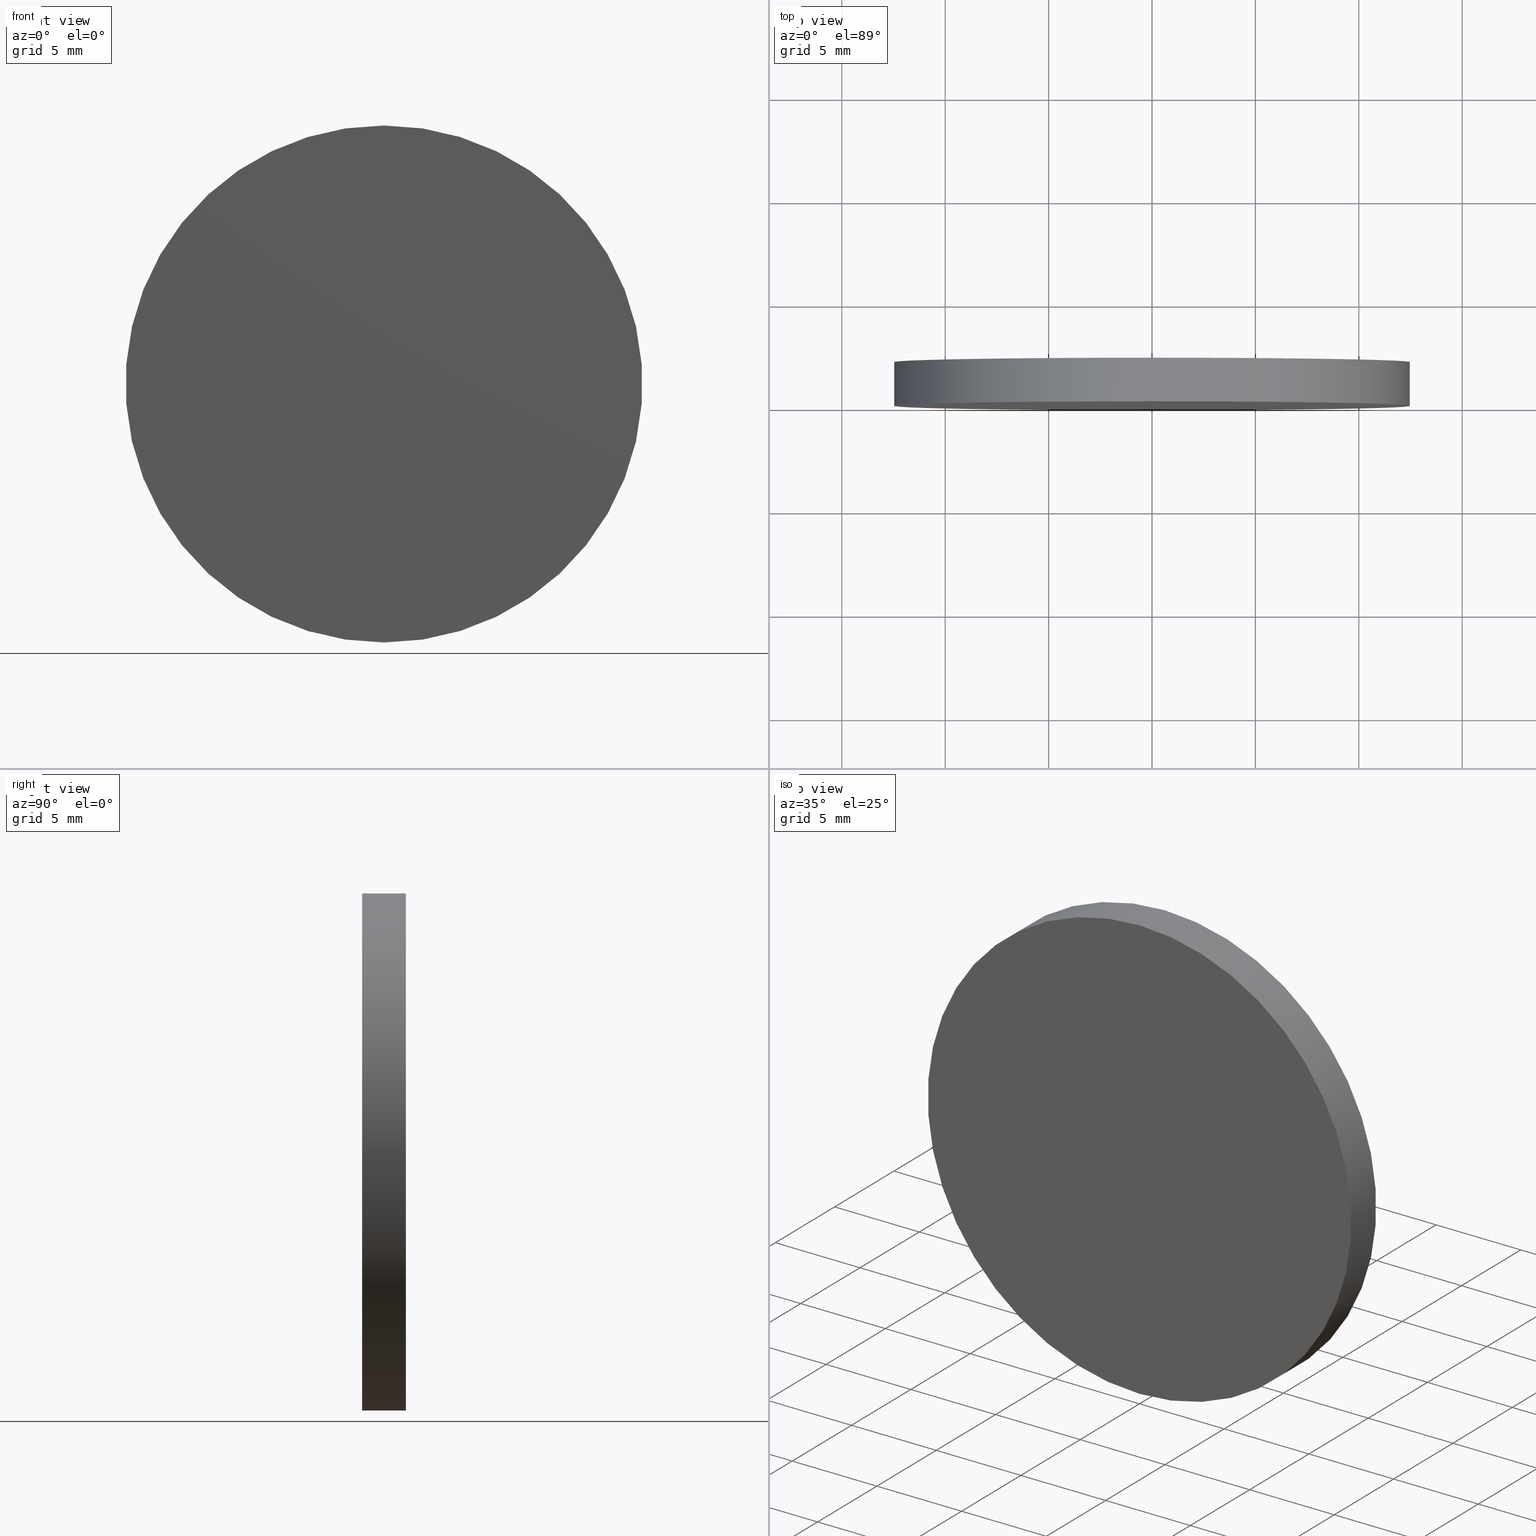
[diagram: canonical four-view strip — front | top / right | iso, engineering-drawing reading convention]
A machine part, canonical four-view strip (front | top / right | iso — engineering-drawing reading convention). The complete STEP part file that produces these views, byte-faithful:
ISO-10303-21;
HEADER;
FILE_DESCRIPTION (( 'STEP AP214' ),
    '1' );
FILE_NAME ('248586.STEP',
    '2019-08-06T03:23:05',
    ( 'user' ),
    ( '΢���й�' ),
    'SwSTEP 2.0',
    'SolidWorks 2016',
    '' );
FILE_SCHEMA (( 'AUTOMOTIVE_DESIGN' ));
ENDSEC;

DATA;
#1 = VERTEX_POINT ( 'NONE', #68 ) ;
#2 = CARTESIAN_POINT ( 'NONE',  ( 0.0000000000000000000, 0.0000000000000000000, 0.0000000000000000000 ) ) ;
#3 = SURFACE_SIDE_STYLE ('',( #88 ) ) ;
#4 = DIRECTION ( 'NONE',  ( 0.0000000000000000000, 1.000000000000000000, 0.0000000000000000000 ) ) ;
#5 = ORIENTED_EDGE ( 'NONE', *, *, #85, .F. ) ;
#6 = AXIS2_PLACEMENT_3D ( 'NONE', #2, #91, #129 ) ;
#7 = CARTESIAN_POINT ( 'NONE',  ( 1.530808498934191500E-015, 0.0000000000000000000, 12.50000000000000000 ) ) ;
#8 = SHAPE_DEFINITION_REPRESENTATION ( #58, #31 ) ;
#9 = PRESENTATION_LAYER_ASSIGNMENT (  '', '', ( #140 ) ) ;
#10 = COLOUR_RGB ( '',1.000000000000000000, 1.000000000000000000, 1.000000000000000000 ) ;
#11 = STYLED_ITEM ( 'NONE', ( #56 ), #135 ) ;
#12 = DIRECTION ( 'NONE',  ( -0.0000000000000000000, -1.000000000000000000, -0.0000000000000000000 ) ) ;
#13 =( NAMED_UNIT ( * ) PLANE_ANGLE_UNIT ( ) SI_UNIT ( $, .RADIAN. ) );
#14 = CARTESIAN_POINT ( 'NONE',  ( 0.0000000000000000000, 2.109999999999999900, 0.0000000000000000000 ) ) ;
#15 = CYLINDRICAL_SURFACE ( 'NONE', #116, 12.50000000000000000 ) ;
#16 = ADVANCED_FACE ( 'NONE', ( #66 ), #105, .T. ) ;
#17 = DIRECTION ( 'NONE',  ( 0.0000000000000000000, 0.0000000000000000000, -1.000000000000000000 ) ) ;
#18 = UNCERTAINTY_MEASURE_WITH_UNIT (LENGTH_MEASURE( 1.000000000000000100E-005 ), #84, 'distance_accuracy_value', 'NONE');
#19 = CARTESIAN_POINT ( 'NONE',  ( 0.0000000000000000000, 2.109999999999999900, -12.50000000000000000 ) ) ;
#20 = MECHANICAL_DESIGN_GEOMETRIC_PRESENTATION_REPRESENTATION (  '', ( #11 ), #74 ) ;
#21 = CIRCLE ( 'NONE', #77, 12.50000000000000000 ) ;
#22 = PRODUCT_DEFINITION ( 'δ֪', '', #72, #121 ) ;
#23 = ORIENTED_EDGE ( 'NONE', *, *, #120, .F. ) ;
#24 =( LENGTH_UNIT ( ) NAMED_UNIT ( * ) SI_UNIT ( .MILLI., .METRE. ) );
#25 = DIRECTION ( 'NONE',  ( 1.000000000000000000, 0.0000000000000000000, 0.0000000000000000000 ) ) ;
#26 =( GEOMETRIC_REPRESENTATION_CONTEXT ( 3 ) GLOBAL_UNCERTAINTY_ASSIGNED_CONTEXT ( ( #18 ) ) GLOBAL_UNIT_ASSIGNED_CONTEXT ( ( #84, #53, #93 ) ) REPRESENTATION_CONTEXT ( 'NONE', 'WORKASPACE' ) );
#27 = PLANE ( 'NONE',  #6 ) ;
#28 = PRODUCT ( '248586', '248586', '', ( #36 ) ) ;
#29 = ORIENTED_EDGE ( 'NONE', *, *, #136, .T. ) ;
#30 = CARTESIAN_POINT ( 'NONE',  ( 0.0000000000000000000, 2.109999999999999900, -12.50000000000000000 ) ) ;
#31 = ADVANCED_BREP_SHAPE_REPRESENTATION ( '248586', ( #135, #96 ), #47 ) ;
#32 = DIRECTION ( 'NONE',  ( 0.0000000000000000000, -0.0000000000000000000, 1.000000000000000000 ) ) ;
#33 = VERTEX_POINT ( 'NONE', #19 ) ;
#34 = PRODUCT_RELATED_PRODUCT_CATEGORY ( 'part', '', ( #28 ) ) ;
#35 = COLOUR_RGB ( '',1.000000000000000000, 1.000000000000000000, 1.000000000000000000 ) ;
#36 = PRODUCT_CONTEXT ( 'NONE', #63, 'mechanical' ) ;
#37 = CARTESIAN_POINT ( 'NONE',  ( 1.530808498934191500E-015, 2.109999999999999900, 12.50000000000000000 ) ) ;
#38 = EDGE_CURVE ( 'NONE', #108, #112, #46, .T. ) ;
#39 = CLOSED_SHELL ( 'NONE', ( #83, #70, #16, #127 ) ) ;
#40 = DIRECTION ( 'NONE',  ( 0.0000000000000000000, 0.0000000000000000000, -1.000000000000000000 ) ) ;
#41 = CARTESIAN_POINT ( 'NONE',  ( 0.0000000000000000000, 0.0000000000000000000, 0.0000000000000000000 ) ) ;
#42 = LINE ( 'NONE', #30, #99 ) ;
#43 = PRESENTATION_LAYER_ASSIGNMENT (  '', '', ( #11 ) ) ;
#44 = CIRCLE ( 'NONE', #126, 12.50000000000000000 ) ;
#45 = DIRECTION ( 'NONE',  ( 0.0000000000000000000, 1.000000000000000000, 0.0000000000000000000 ) ) ;
#46 = LINE ( 'NONE', #37, #101 ) ;
#47 =( GEOMETRIC_REPRESENTATION_CONTEXT ( 3 ) GLOBAL_UNCERTAINTY_ASSIGNED_CONTEXT ( ( #134 ) ) GLOBAL_UNIT_ASSIGNED_CONTEXT ( ( #59, #61, #103 ) ) REPRESENTATION_CONTEXT ( 'NONE', 'WORKASPACE' ) );
#48 = DIRECTION ( 'NONE',  ( -0.0000000000000000000, -1.000000000000000000, -0.0000000000000000000 ) ) ;
#49 = DIRECTION ( 'NONE',  ( -0.0000000000000000000, -1.000000000000000000, -0.0000000000000000000 ) ) ;
#50 = DIRECTION ( 'NONE',  ( 0.0000000000000000000, 0.0000000000000000000, 1.000000000000000000 ) ) ;
#51 = AXIS2_PLACEMENT_3D ( 'NONE', #128, #78, #81 ) ;
#52 = FILL_AREA_STYLE ('',( #102 ) ) ;
#53 =( NAMED_UNIT ( * ) PLANE_ANGLE_UNIT ( ) SI_UNIT ( $, .RADIAN. ) );
#54 = ORIENTED_EDGE ( 'NONE', *, *, #92, .F. ) ;
#55 = PRESENTATION_STYLE_ASSIGNMENT (( #94 ) ) ;
#56 = PRESENTATION_STYLE_ASSIGNMENT (( #86 ) ) ;
#57 = ORIENTED_EDGE ( 'NONE', *, *, #38, .F. ) ;
#58 = PRODUCT_DEFINITION_SHAPE ( 'NONE', 'NONE',  #22 ) ;
#59 =( LENGTH_UNIT ( ) NAMED_UNIT ( * ) SI_UNIT ( .MILLI., .METRE. ) );
#60 = ORIENTED_EDGE ( 'NONE', *, *, #38, .T. ) ;
#61 =( NAMED_UNIT ( * ) PLANE_ANGLE_UNIT ( ) SI_UNIT ( $, .RADIAN. ) );
#62 = DIRECTION ( 'NONE',  ( 0.0000000000000000000, 0.0000000000000000000, 1.000000000000000000 ) ) ;
#63 = APPLICATION_CONTEXT ( 'automotive_design' ) ;
#64 = DIRECTION ( 'NONE',  ( 0.0000000000000000000, 1.000000000000000000, 0.0000000000000000000 ) ) ;
#65 = EDGE_LOOP ( 'NONE', ( #23, #60, #139, #80 ) ) ;
#66 = FACE_OUTER_BOUND ( 'NONE', #106, .T. ) ;
#67 = SURFACE_STYLE_FILL_AREA ( #104 ) ;
#68 = CARTESIAN_POINT ( 'NONE',  ( 0.0000000000000000000, 0.0000000000000000000, -12.50000000000000000 ) ) ;
#69 = DIRECTION ( 'NONE',  ( 0.0000000000000000000, 0.0000000000000000000, 1.000000000000000000 ) ) ;
#70 = ADVANCED_FACE ( 'NONE', ( #71 ), #15, .T. ) ;
#71 = FACE_OUTER_BOUND ( 'NONE', #137, .T. ) ;
#72 = PRODUCT_DEFINITION_FORMATION_WITH_SPECIFIED_SOURCE ( '�κ�', '', #28, .NOT_KNOWN. ) ;
#73 = FACE_OUTER_BOUND ( 'NONE', #87, .T. ) ;
#74 =( GEOMETRIC_REPRESENTATION_CONTEXT ( 3 ) GLOBAL_UNCERTAINTY_ASSIGNED_CONTEXT ( ( #119 ) ) GLOBAL_UNIT_ASSIGNED_CONTEXT ( ( #24, #13, #114 ) ) REPRESENTATION_CONTEXT ( 'NONE', 'WORKASPACE' ) );
#75 = CARTESIAN_POINT ( 'NONE',  ( 0.0000000000000000000, 2.109999999999999900, 0.0000000000000000000 ) ) ;
#76 = CIRCLE ( 'NONE', #107, 12.50000000000000000 ) ;
#77 = AXIS2_PLACEMENT_3D ( 'NONE', #113, #82, #62 ) ;
#78 = DIRECTION ( 'NONE',  ( 0.0000000000000000000, 1.000000000000000000, 0.0000000000000000000 ) ) ;
#79 = CARTESIAN_POINT ( 'NONE',  ( 0.0000000000000000000, 0.0000000000000000000, 0.0000000000000000000 ) ) ;
#80 = ORIENTED_EDGE ( 'NONE', *, *, #136, .F. ) ;
#81 = DIRECTION ( 'NONE',  ( 0.0000000000000000000, 0.0000000000000000000, 1.000000000000000000 ) ) ;
#82 = DIRECTION ( 'NONE',  ( 0.0000000000000000000, 1.000000000000000000, 0.0000000000000000000 ) ) ;
#83 = ADVANCED_FACE ( 'NONE', ( #133 ), #97, .T. ) ;
#84 =( LENGTH_UNIT ( ) NAMED_UNIT ( * ) SI_UNIT ( .MILLI., .METRE. ) );
#85 = EDGE_CURVE ( 'NONE', #1, #112, #132, .T. ) ;
#86 = SURFACE_STYLE_USAGE ( .BOTH. , #115 ) ;
#87 = EDGE_LOOP ( 'NONE', ( #5, #90 ) ) ;
#88 = SURFACE_STYLE_FILL_AREA ( #52 ) ;
#89 = AXIS2_PLACEMENT_3D ( 'NONE', #75, #49, #17 ) ;
#90 = ORIENTED_EDGE ( 'NONE', *, *, #130, .F. ) ;
#91 = DIRECTION ( 'NONE',  ( 0.0000000000000000000, 1.000000000000000000, 0.0000000000000000000 ) ) ;
#92 = EDGE_CURVE ( 'NONE', #33, #108, #44, .T. ) ;
#93 =( NAMED_UNIT ( * ) SI_UNIT ( $, .STERADIAN. ) SOLID_ANGLE_UNIT ( ) );
#94 = SURFACE_STYLE_USAGE ( .BOTH. , #3 ) ;
#95 = ORIENTED_EDGE ( 'NONE', *, *, #120, .T. ) ;
#96 = AXIS2_PLACEMENT_3D ( 'NONE', #41, #50, #25 ) ;
#97 = CYLINDRICAL_SURFACE ( 'NONE', #89, 12.50000000000000000 ) ;
#98 = AXIS2_PLACEMENT_3D ( 'NONE', #14, #45, #32 ) ;
#99 = VECTOR ( 'NONE', #48, 1000.000000000000000 ) ;
#100 = CARTESIAN_POINT ( 'NONE',  ( 0.0000000000000000000, 2.109999999999999900, 0.0000000000000000000 ) ) ;
#101 = VECTOR ( 'NONE', #117, 1000.000000000000000 ) ;
#102 = FILL_AREA_STYLE_COLOUR ( '', #35 ) ;
#103 =( NAMED_UNIT ( * ) SI_UNIT ( $, .STERADIAN. ) SOLID_ANGLE_UNIT ( ) );
#104 = FILL_AREA_STYLE ('',( #138 ) ) ;
#105 = PLANE ( 'NONE',  #98 ) ;
#106 = EDGE_LOOP ( 'NONE', ( #122, #95 ) ) ;
#107 = AXIS2_PLACEMENT_3D ( 'NONE', #79, #64, #69 ) ;
#108 = VERTEX_POINT ( 'NONE', #123 ) ;
#109 = APPLICATION_CONTEXT ( 'automotive_design' ) ;
#110 = APPLICATION_PROTOCOL_DEFINITION ( 'draft international standard', 'automotive_design', 1998, #63 ) ;
#111 = DIRECTION ( 'NONE',  ( 0.0000000000000000000, 0.0000000000000000000, 1.000000000000000000 ) ) ;
#112 = VERTEX_POINT ( 'NONE', #7 ) ;
#113 = CARTESIAN_POINT ( 'NONE',  ( 0.0000000000000000000, 2.109999999999999900, 0.0000000000000000000 ) ) ;
#114 =( NAMED_UNIT ( * ) SI_UNIT ( $, .STERADIAN. ) SOLID_ANGLE_UNIT ( ) );
#115 = SURFACE_SIDE_STYLE ('',( #67 ) ) ;
#116 = AXIS2_PLACEMENT_3D ( 'NONE', #100, #12, #40 ) ;
#117 = DIRECTION ( 'NONE',  ( -0.0000000000000000000, -1.000000000000000000, -0.0000000000000000000 ) ) ;
#118 = ORIENTED_EDGE ( 'NONE', *, *, #85, .T. ) ;
#119 = UNCERTAINTY_MEASURE_WITH_UNIT (LENGTH_MEASURE( 1.000000000000000100E-005 ), #24, 'distance_accuracy_value', 'NONE');
#120 = EDGE_CURVE ( 'NONE', #108, #33, #21, .T. ) ;
#121 = PRODUCT_DEFINITION_CONTEXT ( 'detailed design', #109, 'design' ) ;
#122 = ORIENTED_EDGE ( 'NONE', *, *, #92, .T. ) ;
#123 = CARTESIAN_POINT ( 'NONE',  ( 1.530808498934191500E-015, 2.109999999999999900, 12.50000000000000000 ) ) ;
#124 = CARTESIAN_POINT ( 'NONE',  ( 0.0000000000000000000, 2.109999999999999900, 0.0000000000000000000 ) ) ;
#125 = MECHANICAL_DESIGN_GEOMETRIC_PRESENTATION_REPRESENTATION (  '', ( #140 ), #26 ) ;
#126 = AXIS2_PLACEMENT_3D ( 'NONE', #124, #4, #111 ) ;
#127 = ADVANCED_FACE ( 'NONE', ( #73 ), #27, .F. ) ;
#128 = CARTESIAN_POINT ( 'NONE',  ( 0.0000000000000000000, 0.0000000000000000000, 0.0000000000000000000 ) ) ;
#129 = DIRECTION ( 'NONE',  ( 0.0000000000000000000, -0.0000000000000000000, 1.000000000000000000 ) ) ;
#130 = EDGE_CURVE ( 'NONE', #112, #1, #76, .T. ) ;
#131 = APPLICATION_PROTOCOL_DEFINITION ( 'draft international standard', 'automotive_design', 1998, #109 ) ;
#132 = CIRCLE ( 'NONE', #51, 12.50000000000000000 ) ;
#133 = FACE_OUTER_BOUND ( 'NONE', #65, .T. ) ;
#134 = UNCERTAINTY_MEASURE_WITH_UNIT (LENGTH_MEASURE( 1.000000000000000100E-005 ), #59, 'distance_accuracy_value', 'NONE');
#135 = MANIFOLD_SOLID_BREP ( '͹̨-����1', #39 ) ;
#136 = EDGE_CURVE ( 'NONE', #33, #1, #42, .T. ) ;
#137 = EDGE_LOOP ( 'NONE', ( #57, #54, #29, #118 ) ) ;
#138 = FILL_AREA_STYLE_COLOUR ( '', #10 ) ;
#139 = ORIENTED_EDGE ( 'NONE', *, *, #130, .T. ) ;
#140 = STYLED_ITEM ( 'NONE', ( #55 ), #31 ) ;
ENDSEC;
END-ISO-10303-21;
